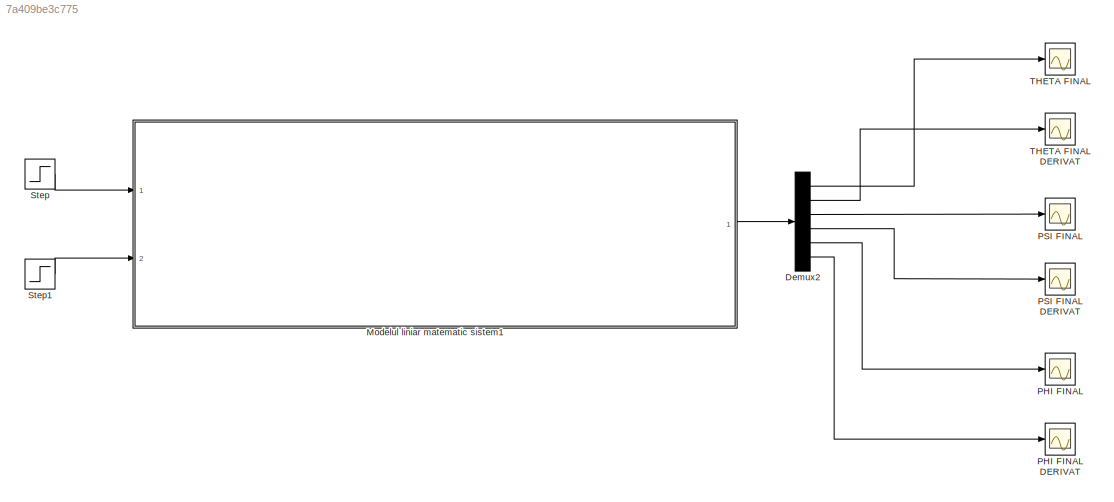
MODEL slx_7a409be3c775
KIND model
CONFIG AbsTol = auto
CONFIG EnableMultiTasking = off
CONFIG FixedStep = auto
CONFIG MaxStep = auto
CONFIG MinStep = auto
CONFIG RelTol = 1e-3
CONFIG SampleTimeConstraint = Unconstrained
CONFIG Solver = VariableStepAuto
CONFIG SolverName = VariableStepAuto
CONFIG StartTime = 0.0
CONFIG StopTime = 10
BLOCK [Demux] Demux2
  DisplayOption = bar
  Outputs = 6
  Ports = [1, 6]
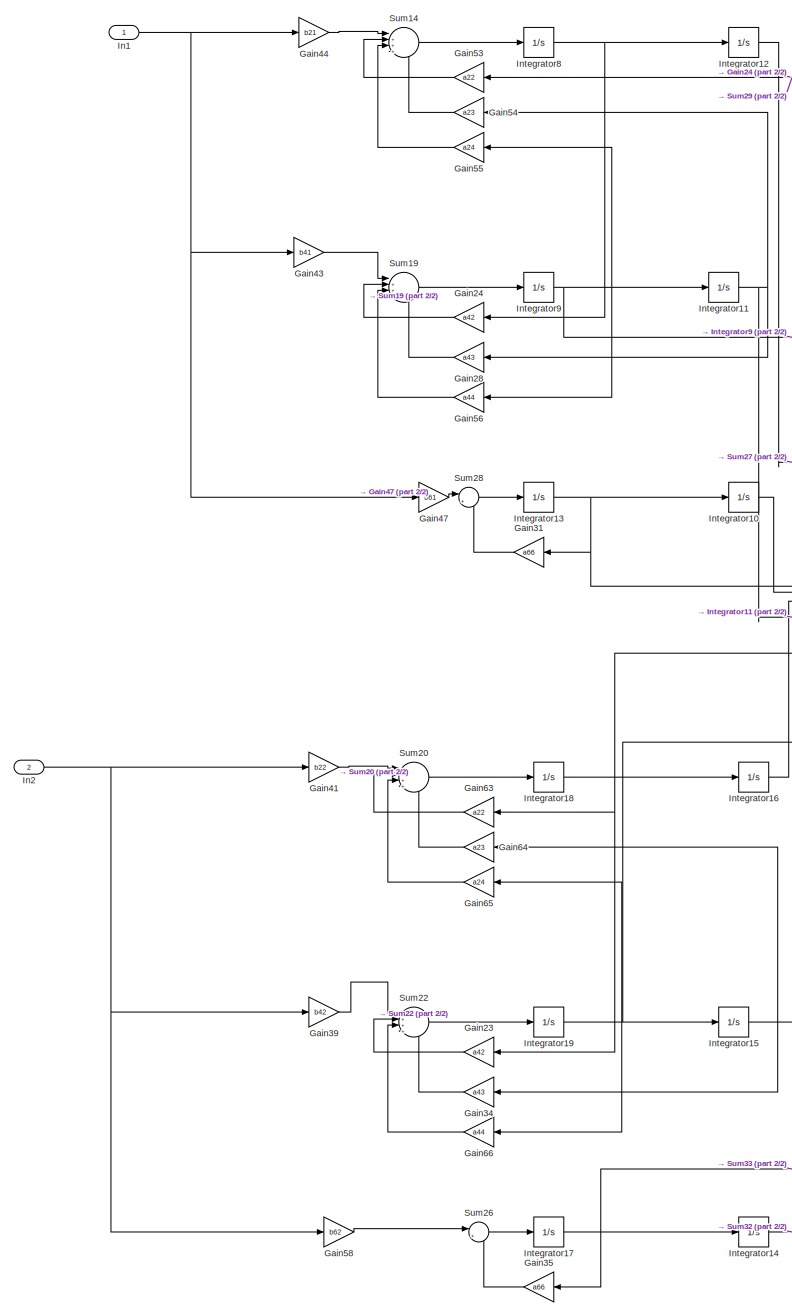
[diagram: Modelul liniar matematic sistem1 - part 1/2, left side, full height]
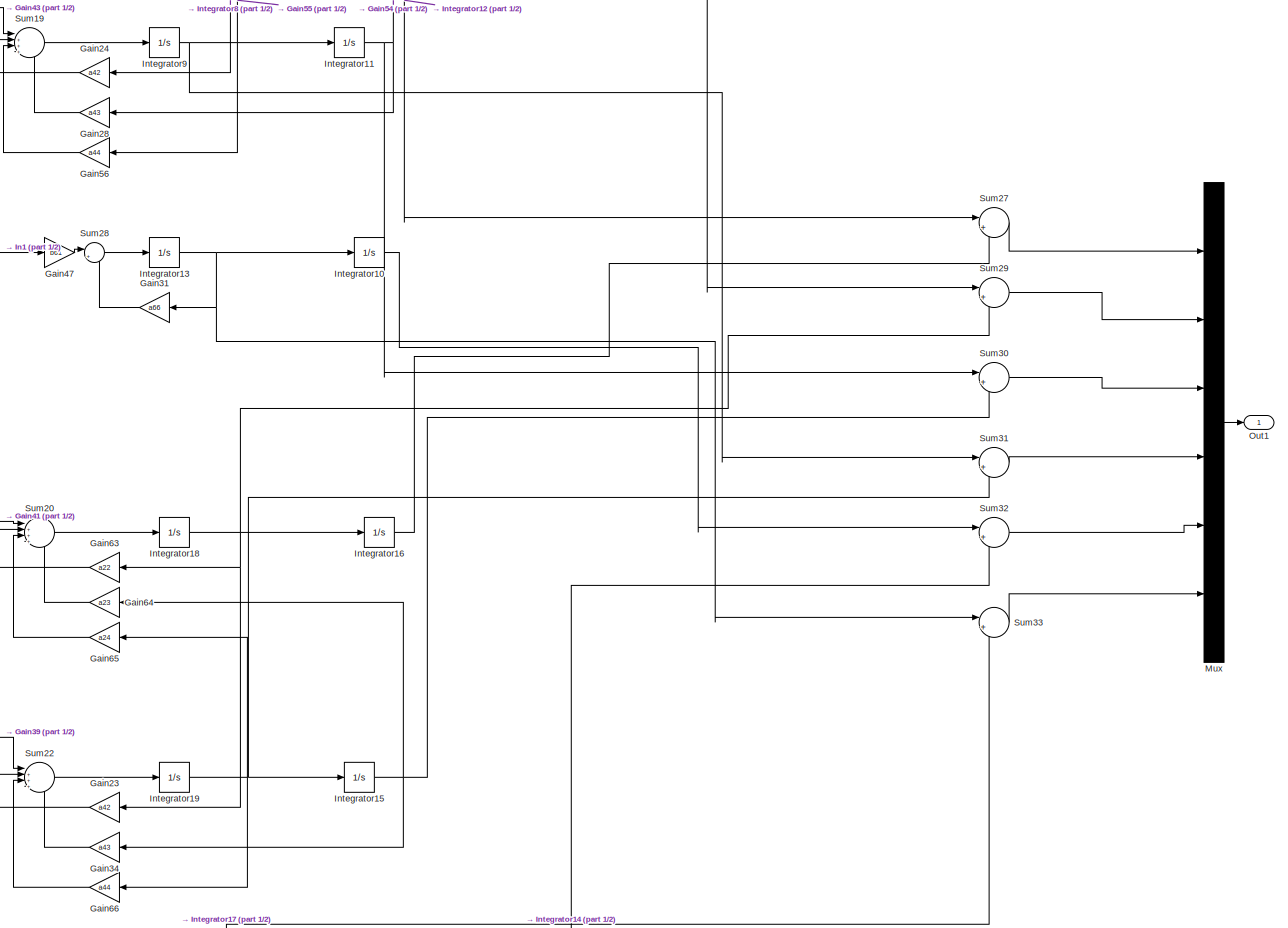
[diagram: Modelul liniar matematic sistem1 - part 2/2, full width, middle band]
BLOCK [SubSystem] Modelul liniar matematic sistem1
  Ports = [2, 1]
  RequestExecContextInheritance = off
BLOCK [Gain] Modelul liniar matematic sistem1/Gain23
  Gain = a42
  OutDataTypeStr = Inherit: Inherit via internal rule
  ParamDataTypeStr = Inherit: Inherit via internal rule
  SaturateOnIntegerOverflow = off
BLOCK [Gain] Modelul liniar matematic sistem1/Gain24
  Gain = a42
  OutDataTypeStr = Inherit: Inherit via internal rule
  ParamDataTypeStr = Inherit: Inherit via internal rule
  SaturateOnIntegerOverflow = off
BLOCK [Gain] Modelul liniar matematic sistem1/Gain28
  Gain = a43
  OutDataTypeStr = Inherit: Inherit via internal rule
  ParamDataTypeStr = Inherit: Inherit via internal rule
  SaturateOnIntegerOverflow = off
BLOCK [Gain] Modelul liniar matematic sistem1/Gain31
  Gain = a66
  OutDataTypeStr = Inherit: Inherit via internal rule
  ParamDataTypeStr = Inherit: Inherit via internal rule
  SaturateOnIntegerOverflow = off
BLOCK [Gain] Modelul liniar matematic sistem1/Gain34
  Gain = a43
  OutDataTypeStr = Inherit: Inherit via internal rule
  ParamDataTypeStr = Inherit: Inherit via internal rule
  SaturateOnIntegerOverflow = off
BLOCK [Gain] Modelul liniar matematic sistem1/Gain35
  Gain = a66
  OutDataTypeStr = Inherit: Inherit via internal rule
  ParamDataTypeStr = Inherit: Inherit via internal rule
  SaturateOnIntegerOverflow = off
BLOCK [Gain] Modelul liniar matematic sistem1/Gain39
  Gain = b42
  OutDataTypeStr = Inherit: Inherit via internal rule
  ParamDataTypeStr = Inherit: Inherit via internal rule
  SaturateOnIntegerOverflow = off
BLOCK [Gain] Modelul liniar matematic sistem1/Gain41
  Gain = b22
  OutDataTypeStr = Inherit: Inherit via internal rule
  ParamDataTypeStr = Inherit: Inherit via internal rule
  SaturateOnIntegerOverflow = off
BLOCK [Gain] Modelul liniar matematic sistem1/Gain43
  Gain = b41
  OutDataTypeStr = Inherit: Inherit via internal rule
  ParamDataTypeStr = Inherit: Inherit via internal rule
  SaturateOnIntegerOverflow = off
BLOCK [Gain] Modelul liniar matematic sistem1/Gain44
  Gain = b21
  OutDataTypeStr = Inherit: Inherit via internal rule
  ParamDataTypeStr = Inherit: Inherit via internal rule
  SaturateOnIntegerOverflow = off
BLOCK [Gain] Modelul liniar matematic sistem1/Gain47
  Gain = b61
  OutDataTypeStr = Inherit: Inherit via internal rule
  ParamDataTypeStr = Inherit: Inherit via internal rule
  SaturateOnIntegerOverflow = off
BLOCK [Gain] Modelul liniar matematic sistem1/Gain53
  Gain = a22
  OutDataTypeStr = Inherit: Inherit via internal rule
  ParamDataTypeStr = Inherit: Inherit via internal rule
  SaturateOnIntegerOverflow = off
BLOCK [Gain] Modelul liniar matematic sistem1/Gain54
  Gain = a23
  OutDataTypeStr = Inherit: Inherit via internal rule
  ParamDataTypeStr = Inherit: Inherit via internal rule
  SaturateOnIntegerOverflow = off
BLOCK [Gain] Modelul liniar matematic sistem1/Gain55
  Gain = a24
  OutDataTypeStr = Inherit: Inherit via internal rule
  ParamDataTypeStr = Inherit: Inherit via internal rule
  SaturateOnIntegerOverflow = off
BLOCK [Gain] Modelul liniar matematic sistem1/Gain56
  Gain = a44
  OutDataTypeStr = Inherit: Inherit via internal rule
  ParamDataTypeStr = Inherit: Inherit via internal rule
  SaturateOnIntegerOverflow = off
BLOCK [Gain] Modelul liniar matematic sistem1/Gain58
  Gain = b62
  OutDataTypeStr = Inherit: Inherit via internal rule
  ParamDataTypeStr = Inherit: Inherit via internal rule
  SaturateOnIntegerOverflow = off
BLOCK [Gain] Modelul liniar matematic sistem1/Gain63
  Gain = a22
  OutDataTypeStr = Inherit: Inherit via internal rule
  ParamDataTypeStr = Inherit: Inherit via internal rule
  SaturateOnIntegerOverflow = off
BLOCK [Gain] Modelul liniar matematic sistem1/Gain64
  Gain = a23
  OutDataTypeStr = Inherit: Inherit via internal rule
  ParamDataTypeStr = Inherit: Inherit via internal rule
  SaturateOnIntegerOverflow = off
BLOCK [Gain] Modelul liniar matematic sistem1/Gain65
  Gain = a24
  OutDataTypeStr = Inherit: Inherit via internal rule
  ParamDataTypeStr = Inherit: Inherit via internal rule
  SaturateOnIntegerOverflow = off
BLOCK [Gain] Modelul liniar matematic sistem1/Gain66
  Gain = a44
  OutDataTypeStr = Inherit: Inherit via internal rule
  ParamDataTypeStr = Inherit: Inherit via internal rule
  SaturateOnIntegerOverflow = off
BLOCK [Inport] Modelul liniar matematic sistem1/In1
  IconDisplay = Port number
BLOCK [Inport] Modelul liniar matematic sistem1/In2
  IconDisplay = Port number
  Port = 2
BLOCK [Integrator] Modelul liniar matematic sistem1/Integrator10
  Ports = [1, 1]
BLOCK [Integrator] Modelul liniar matematic sistem1/Integrator11
  Ports = [1, 1]
BLOCK [Integrator] Modelul liniar matematic sistem1/Integrator12
  Ports = [1, 1]
BLOCK [Integrator] Modelul liniar matematic sistem1/Integrator13
  Ports = [1, 1]
BLOCK [Integrator] Modelul liniar matematic sistem1/Integrator14
  Ports = [1, 1]
BLOCK [Integrator] Modelul liniar matematic sistem1/Integrator15
  Ports = [1, 1]
BLOCK [Integrator] Modelul liniar matematic sistem1/Integrator16
  Ports = [1, 1]
BLOCK [Integrator] Modelul liniar matematic sistem1/Integrator17
  Ports = [1, 1]
BLOCK [Integrator] Modelul liniar matematic sistem1/Integrator18
  Ports = [1, 1]
BLOCK [Integrator] Modelul liniar matematic sistem1/Integrator19
  Ports = [1, 1]
BLOCK [Integrator] Modelul liniar matematic sistem1/Integrator8
  Ports = [1, 1]
BLOCK [Integrator] Modelul liniar matematic sistem1/Integrator9
  Ports = [1, 1]
BLOCK [Mux] Modelul liniar matematic sistem1/Mux
  DisplayOption = bar
  Inputs = 6
  Ports = [6, 1]
BLOCK [Outport] Modelul liniar matematic sistem1/Out1
  IconDisplay = Port number
BLOCK [Sum] Modelul liniar matematic sistem1/Sum14
  IconShape = round
  InputSameDT = off
  Inputs = |++++
  OutDataTypeStr = Inherit: Inherit via internal rule
  Ports = [4, 1]
  SaturateOnIntegerOverflow = off
BLOCK [Sum] Modelul liniar matematic sistem1/Sum19
  IconShape = round
  InputSameDT = off
  Inputs = |++++
  OutDataTypeStr = Inherit: Inherit via internal rule
  Ports = [4, 1]
  SaturateOnIntegerOverflow = off
BLOCK [Sum] Modelul liniar matematic sistem1/Sum20
  IconShape = round
  InputSameDT = off
  Inputs = |++++
  OutDataTypeStr = Inherit: Inherit via internal rule
  Ports = [4, 1]
  SaturateOnIntegerOverflow = off
BLOCK [Sum] Modelul liniar matematic sistem1/Sum22
  IconShape = round
  InputSameDT = off
  Inputs = |++++
  OutDataTypeStr = Inherit: Inherit via internal rule
  Ports = [4, 1]
  SaturateOnIntegerOverflow = off
BLOCK [Sum] Modelul liniar matematic sistem1/Sum26
  IconShape = round
  InputSameDT = off
  Inputs = |++
  OutDataTypeStr = Inherit: Inherit via internal rule
  Ports = [2, 1]
  SaturateOnIntegerOverflow = off
BLOCK [Sum] Modelul liniar matematic sistem1/Sum27
  IconShape = round
  InputSameDT = off
  Inputs = |++
  OutDataTypeStr = Inherit: Inherit via internal rule
  Ports = [2, 1]
  SaturateOnIntegerOverflow = off
BLOCK [Sum] Modelul liniar matematic sistem1/Sum28
  IconShape = round
  InputSameDT = off
  Inputs = |++
  OutDataTypeStr = Inherit: Inherit via internal rule
  Ports = [2, 1]
  SaturateOnIntegerOverflow = off
BLOCK [Sum] Modelul liniar matematic sistem1/Sum29
  IconShape = round
  InputSameDT = off
  Inputs = |++
  OutDataTypeStr = Inherit: Inherit via internal rule
  Ports = [2, 1]
  SaturateOnIntegerOverflow = off
BLOCK [Sum] Modelul liniar matematic sistem1/Sum30
  IconShape = round
  InputSameDT = off
  Inputs = |++
  OutDataTypeStr = Inherit: Inherit via internal rule
  Ports = [2, 1]
  SaturateOnIntegerOverflow = off
BLOCK [Sum] Modelul liniar matematic sistem1/Sum31
  IconShape = round
  InputSameDT = off
  Inputs = |++
  OutDataTypeStr = Inherit: Inherit via internal rule
  Ports = [2, 1]
  SaturateOnIntegerOverflow = off
BLOCK [Sum] Modelul liniar matematic sistem1/Sum32
  IconShape = round
  InputSameDT = off
  Inputs = |++
  OutDataTypeStr = Inherit: Inherit via internal rule
  Ports = [2, 1]
  SaturateOnIntegerOverflow = off
BLOCK [Sum] Modelul liniar matematic sistem1/Sum33
  IconShape = round
  InputSameDT = off
  Inputs = |++
  OutDataTypeStr = Inherit: Inherit via internal rule
  Ports = [2, 1]
  SaturateOnIntegerOverflow = off
BLOCK [Scope] PHI FINAL
  Floating = off
  NumInputPorts = 1
  Ports = [1]
  ScopeSpecificationString = Simulink.scopes.TimeScopeBlockCfg('CurrentConfiguration', extmgr.ConfigurationSet(extmgr.Configuration('Core','General UI',true),extmgr.Configuration('Core','Source UI',true),extmgr.Configuration('Sources','WiredSimulink',true,'DataLoggingVariableName','ScopeData2'),extmgr.Configuration('Visuals','Time Domain',true,'SerializedDisplays',{struct('MinYLimReal','-48.7155','MaxYLimReal','5.41283','YLab...<+1420ch>
BLOCK [Scope] PHI FINAL DERIVAT 
  Floating = off
  NumInputPorts = 1
  Ports = [1]
  ScopeSpecificationString = Simulink.scopes.TimeScopeBlockCfg('CurrentConfiguration', extmgr.ConfigurationSet(extmgr.Configuration('Core','General UI',true),extmgr.Configuration('Core','Source UI',true),extmgr.Configuration('Sources','WiredSimulink',true,'DataLoggingVariableName','ScopeData1'),extmgr.Configuration('Visuals','Time Domain',true,'SerializedDisplays',{struct('MinYLimReal','-8.232','MaxYLimReal','0.91467','YLabel...<+1413ch>
BLOCK [Scope] PSI FINAL
  Floating = off
  NumInputPorts = 1
  Ports = [1]
  ScopeSpecificationString = Simulink.scopes.TimeScopeBlockCfg('CurrentConfiguration', extmgr.ConfigurationSet(extmgr.Configuration('Core','General UI',true),extmgr.Configuration('Core','Source UI',true),extmgr.Configuration('Sources','WiredSimulink',true,'DataLoggingVariableName','ScopeData4'),extmgr.Configuration('Visuals','Time Domain',true,'SerializedDisplays',{struct('MinYLimReal','-425847758810347845734891520.00000','Ma...<+1653ch>
BLOCK [Scope] PSI FINAL DERIVAT 
  Floating = off
  NumInputPorts = 1
  Ports = [1]
  ScopeSpecificationString = Simulink.scopes.TimeScopeBlockCfg('CurrentConfiguration', extmgr.ConfigurationSet(extmgr.Configuration('Core','General UI',true),extmgr.Configuration('Core','Source UI',true),extmgr.Configuration('Sources','WiredSimulink',true,'DataLoggingVariableName','ScopeData3'),extmgr.Configuration('Visuals','Time Domain',true,'SerializedDisplays',{struct('MinYLimReal','-2805705484343596526218510336.00000','M...<+1662ch>
BLOCK [Step] Step
  SampleTime = 0
  Time = 0
BLOCK [Step] Step1
  SampleTime = 0
  Time = 0
BLOCK [Scope] THETA FINAL
  Floating = off
  NumInputPorts = 1
  Ports = [1]
  ScopeSpecificationString = Simulink.scopes.TimeScopeBlockCfg('CurrentConfiguration', extmgr.ConfigurationSet(extmgr.Configuration('Core','General UI',true),extmgr.Configuration('Core','Source UI',true),extmgr.Configuration('Sources','WiredSimulink',true,'DataLoggingVariableName','ScopeData6'),extmgr.Configuration('Visuals','Time Domain',true,'SerializedDisplays',{struct('MinYLimReal','-46677996135995337986801664.00000','Max...<+1678ch>
BLOCK [Scope] THETA FINAL DERIVAT 
  Floating = off
  NumInputPorts = 1
  Ports = [1]
  ScopeSpecificationString = Simulink.scopes.TimeScopeBlockCfg('CurrentConfiguration', extmgr.ConfigurationSet(extmgr.Configuration('Core','General UI',true),extmgr.Configuration('Core','Source UI',true),extmgr.Configuration('Sources','WiredSimulink',true,'DataLoggingVariableName','ScopeData5'),extmgr.Configuration('Visuals','Time Domain',true,'SerializedDisplays',{struct('MinYLimReal','-307538802418017929833480192.00000','Ma...<+1660ch>
LINE Demux2:1 -> THETA FINAL:1
LINE Demux2:2 -> THETA FINAL DERIVAT :1
LINE Demux2:3 -> PSI FINAL:1
LINE Demux2:4 -> PSI FINAL DERIVAT :1
LINE Demux2:5 -> PHI FINAL:1
LINE Demux2:6 -> PHI FINAL DERIVAT :1
LINE Modelul liniar matematic sistem1/Gain23:1 -> Modelul liniar matematic sistem1/Sum22:2
LINE Modelul liniar matematic sistem1/Gain24:1 -> Modelul liniar matematic sistem1/Sum19:2
LINE Modelul liniar matematic sistem1/Gain28:1 -> Modelul liniar matematic sistem1/Sum19:4
LINE Modelul liniar matematic sistem1/Gain31:1 -> Modelul liniar matematic sistem1/Sum28:2
LINE Modelul liniar matematic sistem1/Gain34:1 -> Modelul liniar matematic sistem1/Sum22:4
LINE Modelul liniar matematic sistem1/Gain35:1 -> Modelul liniar matematic sistem1/Sum26:2
LINE Modelul liniar matematic sistem1/Gain39:1 -> Modelul liniar matematic sistem1/Sum22:1
LINE Modelul liniar matematic sistem1/Gain41:1 -> Modelul liniar matematic sistem1/Sum20:1
LINE Modelul liniar matematic sistem1/Gain43:1 -> Modelul liniar matematic sistem1/Sum19:1
LINE Modelul liniar matematic sistem1/Gain44:1 -> Modelul liniar matematic sistem1/Sum14:1
LINE Modelul liniar matematic sistem1/Gain47:1 -> Modelul liniar matematic sistem1/Sum28:1
LINE Modelul liniar matematic sistem1/Gain53:1 -> Modelul liniar matematic sistem1/Sum14:2
LINE Modelul liniar matematic sistem1/Gain54:1 -> Modelul liniar matematic sistem1/Sum14:4
LINE Modelul liniar matematic sistem1/Gain55:1 -> Modelul liniar matematic sistem1/Sum14:3
LINE Modelul liniar matematic sistem1/Gain56:1 -> Modelul liniar matematic sistem1/Sum19:3
LINE Modelul liniar matematic sistem1/Gain58:1 -> Modelul liniar matematic sistem1/Sum26:1
LINE Modelul liniar matematic sistem1/Gain63:1 -> Modelul liniar matematic sistem1/Sum20:2
LINE Modelul liniar matematic sistem1/Gain64:1 -> Modelul liniar matematic sistem1/Sum20:4
LINE Modelul liniar matematic sistem1/Gain65:1 -> Modelul liniar matematic sistem1/Sum20:3
LINE Modelul liniar matematic sistem1/Gain66:1 -> Modelul liniar matematic sistem1/Sum22:3
NET Modelul liniar matematic sistem1/In1:1 -> Modelul liniar matematic sistem1/Gain43:1, Modelul liniar matematic sistem1/Gain44:1, Modelul liniar matematic sistem1/Gain47:1
NET Modelul liniar matematic sistem1/In2:1 -> Modelul liniar matematic sistem1/Gain39:1, Modelul liniar matematic sistem1/Gain41:1, Modelul liniar matematic sistem1/Gain58:1
LINE Modelul liniar matematic sistem1/Integrator10:1 -> Modelul liniar matematic sistem1/Sum32:1
NET Modelul liniar matematic sistem1/Integrator11:1 -> Modelul liniar matematic sistem1/Gain28:1, Modelul liniar matematic sistem1/Gain54:1, Modelul liniar matematic sistem1/Sum30:1
LINE Modelul liniar matematic sistem1/Integrator12:1 -> Modelul liniar matematic sistem1/Sum27:1
NET Modelul liniar matematic sistem1/Integrator13:1 -> Modelul liniar matematic sistem1/Gain31:1, Modelul liniar matematic sistem1/Integrator10:1, Modelul liniar matematic sistem1/Sum33:1
LINE Modelul liniar matematic sistem1/Integrator14:1 -> Modelul liniar matematic sistem1/Sum32:2
NET Modelul liniar matematic sistem1/Integrator15:1 -> Modelul liniar matematic sistem1/Gain34:1, Modelul liniar matematic sistem1/Gain64:1, Modelul liniar matematic sistem1/Sum30:2
LINE Modelul liniar matematic sistem1/Integrator16:1 -> Modelul liniar matematic sistem1/Sum27:2
NET Modelul liniar matematic sistem1/Integrator17:1 -> Modelul liniar matematic sistem1/Gain35:1, Modelul liniar matematic sistem1/Integrator14:1, Modelul liniar matematic sistem1/Sum33:2
NET Modelul liniar matematic sistem1/Integrator18:1 -> Modelul liniar matematic sistem1/Gain23:1, Modelul liniar matematic sistem1/Gain63:1, Modelul liniar matematic sistem1/Integrator16:1, Modelul liniar matematic sistem1/Sum29:2
NET Modelul liniar matematic sistem1/Integrator19:1 -> Modelul liniar matematic sistem1/Gain65:1, Modelul liniar matematic sistem1/Gain66:1, Modelul liniar matematic sistem1/Integrator15:1, Modelul liniar matematic sistem1/Sum31:2
NET Modelul liniar matematic sistem1/Integrator8:1 -> Modelul liniar matematic sistem1/Gain24:1, Modelul liniar matematic sistem1/Gain53:1, Modelul liniar matematic sistem1/Integrator12:1, Modelul liniar matematic sistem1/Sum29:1
NET Modelul liniar matematic sistem1/Integrator9:1 -> Modelul liniar matematic sistem1/Gain55:1, Modelul liniar matematic sistem1/Gain56:1, Modelul liniar matematic sistem1/Integrator11:1, Modelul liniar matematic sistem1/Sum31:1
LINE Modelul liniar matematic sistem1/Mux:1 -> Modelul liniar matematic sistem1/Out1:1
LINE Modelul liniar matematic sistem1/Sum14:1 -> Modelul liniar matematic sistem1/Integrator8:1
LINE Modelul liniar matematic sistem1/Sum19:1 -> Modelul liniar matematic sistem1/Integrator9:1
LINE Modelul liniar matematic sistem1/Sum20:1 -> Modelul liniar matematic sistem1/Integrator18:1
LINE Modelul liniar matematic sistem1/Sum22:1 -> Modelul liniar matematic sistem1/Integrator19:1
LINE Modelul liniar matematic sistem1/Sum26:1 -> Modelul liniar matematic sistem1/Integrator17:1
LINE Modelul liniar matematic sistem1/Sum27:1 -> Modelul liniar matematic sistem1/Mux:1
LINE Modelul liniar matematic sistem1/Sum28:1 -> Modelul liniar matematic sistem1/Integrator13:1
LINE Modelul liniar matematic sistem1/Sum29:1 -> Modelul liniar matematic sistem1/Mux:2
LINE Modelul liniar matematic sistem1/Sum30:1 -> Modelul liniar matematic sistem1/Mux:3
LINE Modelul liniar matematic sistem1/Sum31:1 -> Modelul liniar matematic sistem1/Mux:4
LINE Modelul liniar matematic sistem1/Sum32:1 -> Modelul liniar matematic sistem1/Mux:5
LINE Modelul liniar matematic sistem1/Sum33:1 -> Modelul liniar matematic sistem1/Mux:6
LINE Modelul liniar matematic sistem1:1 -> Demux2:1
LINE Step1:1 -> Modelul liniar matematic sistem1:2
LINE Step:1 -> Modelul liniar matematic sistem1:1
note: NET lines group one-source signal fan-out (src -> all destinations, sorted); 1:1 wires keep LINE
